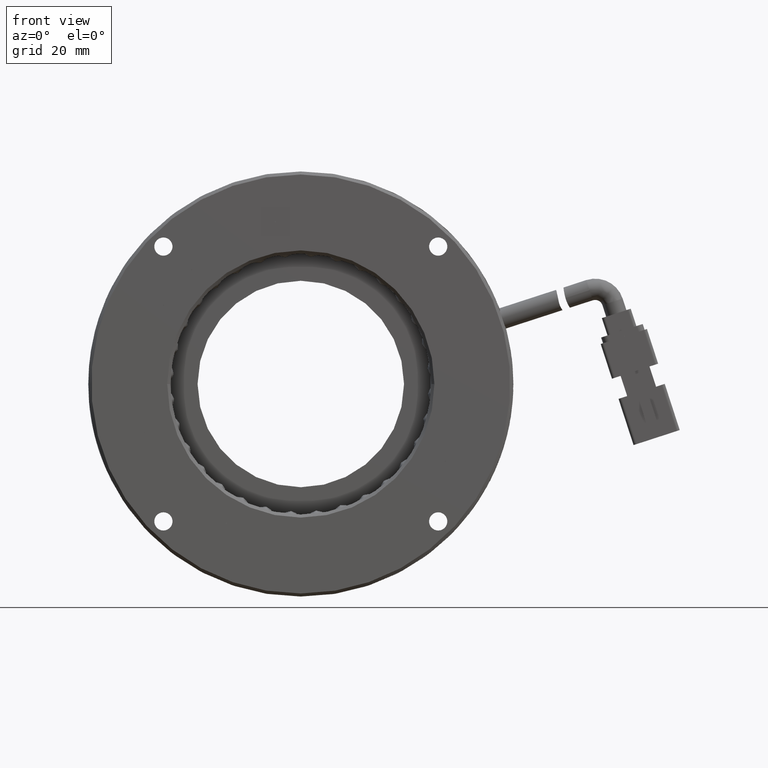
[diagram: clean part render]
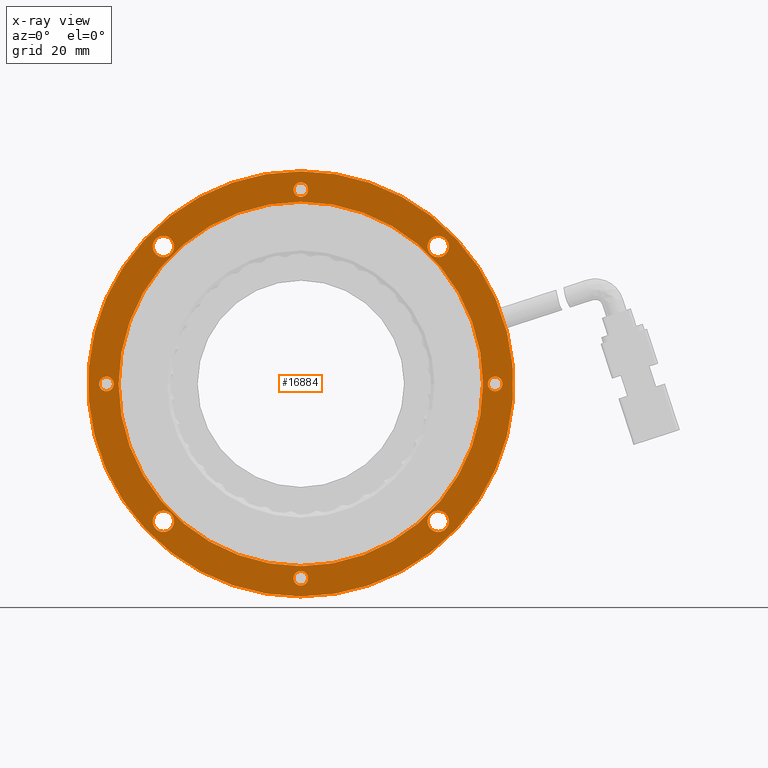
[diagram: x-ray — body ghosted, one internal face saturated and labeled with its STEP entity id]
A machine part, front view, then the same camera in x-ray: the body is ghosted and one INTERNAL B-rep face — a face not visible from any outside direction — is saturated and labeled: STEP entity #16884.
In plain terms, the highlighted planar face has unit normal (0, 1, 0).
Its self-contained STEP definition (entity closure, byte-faithful):
#415 = CARTESIAN_POINT ( 'NONE',  ( -37.70929214490434600, 11.26020291540426400, -1.200000000000019700 ) ) ;
#514 = CARTESIAN_POINT ( 'NONE',  ( -5.709292144904342300, 11.26020291540426400, -2.081668171172168500E-014 ) ) ;
#583 = AXIS2_PLACEMENT_3D ( 'NONE', #20029, #1546, #23216 ) ;
#794 = VERTEX_POINT ( 'NONE', #34914 ) ;
#1131 = CARTESIAN_POINT ( 'NONE',  ( -5.709292144904676300, 11.26020291540426400, 33.19999999999998200 ) ) ;
#1140 = AXIS2_PLACEMENT_3D ( 'NONE', #23021, #4474, #26160 ) ;
#1170 = AXIS2_PLACEMENT_3D ( 'NONE', #1481, #23152, #4618 ) ;
#1225 = AXIS2_PLACEMENT_3D ( 'NONE', #11918, #33789, #15044 ) ;
#1481 = CARTESIAN_POINT ( 'NONE',  ( -28.33670914287374700, 11.26020291540426400, -22.62741699796966100 ) ) ;
#1517 = DIRECTION ( 'NONE',  ( 0.0000000000000000000, 1.000000000000000000, 0.0000000000000000000 ) ) ;
#1546 = DIRECTION ( 'NONE',  ( 0.0000000000000000000, -1.000000000000000000, 0.0000000000000000000 ) ) ;
#1566 = EDGE_CURVE ( 'NONE', #21693, #3538, #11659, .T. ) ;
#1718 = AXIS2_PLACEMENT_3D ( 'NONE', #24076, #5513, #27234 ) ;
#1820 = EDGE_CURVE ( 'NONE', #12253, #8731, #12600, .T. ) ;
#2083 = EDGE_CURVE ( 'NONE', #34594, #6082, #17949, .T. ) ;
#2548 = ORIENTED_EDGE ( 'NONE', *, *, #11512, .T. ) ;
#2855 = ORIENTED_EDGE ( 'NONE', *, *, #32781, .T. ) ;
#2874 = DIRECTION ( 'NONE',  ( 0.0000000000000000000, 0.0000000000000000000, 1.000000000000000000 ) ) ;
#2922 = DIRECTION ( 'NONE',  ( 0.0000000000000000000, -1.000000000000000000, 0.0000000000000000000 ) ) ;
#3008 = CARTESIAN_POINT ( 'NONE',  ( -5.709292144904676300, 11.26020291540426400, 31.99999999999997900 ) ) ;
#3538 = VERTEX_POINT ( 'NONE', #18701 ) ;
#3633 = DIRECTION ( 'NONE',  ( 0.0000000000000000000, 0.0000000000000000000, -1.000000000000000000 ) ) ;
#4024 = AXIS2_PLACEMENT_3D ( 'NONE', #6215, #27947, #9305 ) ;
#4474 = DIRECTION ( 'NONE',  ( 0.0000000000000000000, -1.000000000000000000, 0.0000000000000000000 ) ) ;
#4618 = DIRECTION ( 'NONE',  ( 0.0000000000000000000, 0.0000000000000000000, 1.000000000000000000 ) ) ;
#4658 = EDGE_LOOP ( 'NONE', ( #16891, #11779 ) ) ;
#4754 = FACE_BOUND ( 'NONE', #33354, .T. ) ;
#4873 = CARTESIAN_POINT ( 'NONE',  ( 16.91812485306521900, 11.26020291540426400, 22.62741699796945800 ) ) ;
#5054 = VERTEX_POINT ( 'NONE', #19229 ) ;
#5105 = CARTESIAN_POINT ( 'NONE',  ( -37.70929214490434600, 11.26020291540426400, -1.986335369231264700E-014 ) ) ;
#5205 = EDGE_CURVE ( 'NONE', #24015, #12031, #19888, .T. ) ;
#5276 = CARTESIAN_POINT ( 'NONE',  ( 16.91812485306521900, 11.26020291540426400, 22.62741699796945800 ) ) ;
#5408 = CARTESIAN_POINT ( 'NONE',  ( -5.709292144904231300, 11.26020291540426400, -33.20000000000002400 ) ) ;
#5513 = DIRECTION ( 'NONE',  ( 0.0000000000000000000, -1.000000000000000000, 0.0000000000000000000 ) ) ;
#5524 = DIRECTION ( 'NONE',  ( 0.0000000000000000000, 1.000000000000000000, 0.0000000000000000000 ) ) ;
#5711 = FACE_BOUND ( 'NONE', #13757, .T. ) ;
#5867 = ORIENTED_EDGE ( 'NONE', *, *, #21473, .T. ) ;
#6082 = VERTEX_POINT ( 'NONE', #27359 ) ;
#6215 = CARTESIAN_POINT ( 'NONE',  ( -5.709292144904342300, 11.26020291540426400, -2.081668171172168500E-014 ) ) ;
#6388 = CARTESIAN_POINT ( 'NONE',  ( 16.91812485306537200, 11.26020291540426400, -22.62741699796934800 ) ) ;
#7347 = CIRCLE ( 'NONE', #12467, 1.749999999999994700 ) ;
#7453 = EDGE_CURVE ( 'NONE', #27348, #28203, #34976, .T. ) ;
#7493 = AXIS2_PLACEMENT_3D ( 'NONE', #3008, #2922, #2874 ) ;
#7595 = CIRCLE ( 'NONE', #25868, 1.749999999999991100 ) ;
#7948 = CARTESIAN_POINT ( 'NONE',  ( -37.70929214490434600, 11.26020291540426400, -1.986335369231264700E-014 ) ) ;
#7965 = DIRECTION ( 'NONE',  ( 0.0000000000000000000, 0.0000000000000000000, 1.000000000000000000 ) ) ;
#8035 = CARTESIAN_POINT ( 'NONE',  ( 26.29070785509565800, 11.26020291540426400, -1.199999999999798100 ) ) ;
#8192 = DIRECTION ( 'NONE',  ( 0.0000000000000000000, 0.0000000000000000000, 1.000000000000000000 ) ) ;
#8318 = EDGE_CURVE ( 'NONE', #38157, #29943, #19141, .T. ) ;
#8380 = DIRECTION ( 'NONE',  ( 0.0000000000000000000, 0.0000000000000000000, 1.000000000000000000 ) ) ;
#8666 = AXIS2_PLACEMENT_3D ( 'NONE', #6388, #28108, #9477 ) ;
#8731 = VERTEX_POINT ( 'NONE', #1131 ) ;
#9056 = DIRECTION ( 'NONE',  ( 0.0000000000000000000, 0.0000000000000000000, 1.000000000000000000 ) ) ;
#9105 = DIRECTION ( 'NONE',  ( 0.0000000000000000000, -1.000000000000000000, 0.0000000000000000000 ) ) ;
#9305 = DIRECTION ( 'NONE',  ( 0.0000000000000000000, 0.0000000000000000000, -1.000000000000000000 ) ) ;
#9404 = CARTESIAN_POINT ( 'NONE',  ( 26.29070785509565800, 11.26020291540426400, 2.016849253798697700E-013 ) ) ;
#9477 = DIRECTION ( 'NONE',  ( 0.0000000000000000000, 0.0000000000000000000, 1.000000000000000000 ) ) ;
#9619 = CARTESIAN_POINT ( 'NONE',  ( -28.33670914287390000, 11.26020291540426400, 22.62741699796946200 ) ) ;
#9729 = EDGE_CURVE ( 'NONE', #12031, #24015, #14126, .T. ) ;
#11008 = DIRECTION ( 'NONE',  ( 0.0000000000000000000, 0.0000000000000000000, 1.000000000000000000 ) ) ;
#11044 = ORIENTED_EDGE ( 'NONE', *, *, #33968, .F. ) ;
#11149 = CIRCLE ( 'NONE', #1170, 1.749999999999991100 ) ;
#11307 = ORIENTED_EDGE ( 'NONE', *, *, #7453, .F. ) ;
#11512 = EDGE_CURVE ( 'NONE', #16278, #38299, #14379, .T. ) ;
#11659 = CIRCLE ( 'NONE', #34071, 1.199999999999999700 ) ;
#11708 = CARTESIAN_POINT ( 'NONE',  ( -5.709292144904342300, 11.26020291540426400, -2.081668171172168500E-014 ) ) ;
#11713 = AXIS2_PLACEMENT_3D ( 'NONE', #35555, #16836, #38678 ) ;
#11779 = ORIENTED_EDGE ( 'NONE', *, *, #22088, .T. ) ;
#11918 = CARTESIAN_POINT ( 'NONE',  ( -28.33670914287390000, 11.26020291540426400, 22.62741699796946200 ) ) ;
#12031 = VERTEX_POINT ( 'NONE', #31120 ) ;
#12253 = VERTEX_POINT ( 'NONE', #16429 ) ;
#12467 = AXIS2_PLACEMENT_3D ( 'NONE', #9619, #31457, #12688 ) ;
#12530 = DIRECTION ( 'NONE',  ( 0.0000000000000000000, 0.0000000000000000000, 1.000000000000000000 ) ) ;
#12600 = CIRCLE ( 'NONE', #7493, 1.199999999999999700 ) ;
#12688 = DIRECTION ( 'NONE',  ( 0.0000000000000000000, 0.0000000000000000000, 1.000000000000000000 ) ) ;
#12713 = DIRECTION ( 'NONE',  ( 0.0000000000000000000, -1.000000000000000000, 0.0000000000000000000 ) ) ;
#12739 = CARTESIAN_POINT ( 'NONE',  ( -5.709292144904231300, 11.26020291540426400, -32.00000000000002100 ) ) ;
#12778 = DIRECTION ( 'NONE',  ( 0.0000000000000000000, 0.0000000000000000000, 1.000000000000000000 ) ) ;
#12802 = EDGE_LOOP ( 'NONE', ( #32792, #11307 ) ) ;
#12906 = FACE_BOUND ( 'NONE', #38295, .T. ) ;
#12914 = DIRECTION ( 'NONE',  ( -0.0000000000000000000, 1.000000000000000000, -0.0000000000000000000 ) ) ;
#13038 = CARTESIAN_POINT ( 'NONE',  ( -28.33670914287374700, 11.26020291540426400, -22.62741699796966100 ) ) ;
#13394 = CIRCLE ( 'NONE', #37802, 1.749999999999991100 ) ;
#13468 = AXIS2_PLACEMENT_3D ( 'NONE', #11708, #33577, #14845 ) ;
#13668 = EDGE_CURVE ( 'NONE', #36672, #24211, #13394, .T. ) ;
#13757 = EDGE_LOOP ( 'NONE', ( #16650, #16662 ) ) ;
#13920 = EDGE_LOOP ( 'NONE', ( #21022, #25463 ) ) ;
#14126 = CIRCLE ( 'NONE', #583, 1.199999999999999700 ) ;
#14379 = CIRCLE ( 'NONE', #8666, 1.749999999999991100 ) ;
#14494 = EDGE_CURVE ( 'NONE', #28916, #5054, #21066, .T. ) ;
#14611 = AXIS2_PLACEMENT_3D ( 'NONE', #514, #22147, #3633 ) ;
#14667 = CARTESIAN_POINT ( 'NONE',  ( -5.709292144904342300, 11.26020291540426400, -35.00000000000002100 ) ) ;
#14736 = ORIENTED_EDGE ( 'NONE', *, *, #14494, .F. ) ;
#14845 = DIRECTION ( 'NONE',  ( 0.0000000000000000000, 0.0000000000000000000, -1.000000000000000000 ) ) ;
#15044 = DIRECTION ( 'NONE',  ( 0.0000000000000000000, 0.0000000000000000000, 1.000000000000000000 ) ) ;
#15147 = CIRCLE ( 'NONE', #11713, 1.749999999999991100 ) ;
#15761 = EDGE_LOOP ( 'NONE', ( #23351, #20774 ) ) ;
#16278 = VERTEX_POINT ( 'NONE', #35379 ) ;
#16429 = CARTESIAN_POINT ( 'NONE',  ( -5.709292144904676300, 11.26020291540426400, 30.79999999999997900 ) ) ;
#16650 = ORIENTED_EDGE ( 'NONE', *, *, #28747, .F. ) ;
#16662 = ORIENTED_EDGE ( 'NONE', *, *, #8318, .F. ) ;
#16836 = DIRECTION ( 'NONE',  ( -0.0000000000000000000, 1.000000000000000000, -0.0000000000000000000 ) ) ;
#16884 = ADVANCED_FACE ( 'NONE', ( #37790, #5711, #22164, #29538, #21162, #23149, #12906, #4754, #36827, #28558 ), #38597, .F. ) ;
#16891 = ORIENTED_EDGE ( 'NONE', *, *, #13668, .T. ) ;
#17763 = EDGE_CURVE ( 'NONE', #8731, #12253, #35618, .T. ) ;
#17949 = CIRCLE ( 'NONE', #33617, 1.749999999999991100 ) ;
#18060 = ORIENTED_EDGE ( 'NONE', *, *, #22933, .T. ) ;
#18105 = EDGE_LOOP ( 'NONE', ( #35573, #27761 ) ) ;
#18529 = CARTESIAN_POINT ( 'NONE',  ( 16.91812485306521900, 11.26020291540426400, 20.87741699796946500 ) ) ;
#18607 = AXIS2_PLACEMENT_3D ( 'NONE', #5105, #26798, #8192 ) ;
#18701 = CARTESIAN_POINT ( 'NONE',  ( -5.709292144904231300, 11.26020291540426400, -30.80000000000002200 ) ) ;
#19141 = CIRCLE ( 'NONE', #18607, 1.199999999999999700 ) ;
#19229 = CARTESIAN_POINT ( 'NONE',  ( -5.709292144904337900, 11.26020291540426400, 34.99999999999998600 ) ) ;
#19291 = CARTESIAN_POINT ( 'NONE',  ( -5.709292144904338800, 11.26020291540426400, 29.99999999999997900 ) ) ;
#19888 = CIRCLE ( 'NONE', #31496, 1.199999999999999700 ) ;
#19993 = CARTESIAN_POINT ( 'NONE',  ( -40.70929214490435300, 11.26020291540426400, -2.081668171172168500E-014 ) ) ;
#20029 = CARTESIAN_POINT ( 'NONE',  ( 26.29070785509565800, 11.26020291540426400, 2.016849253798697700E-013 ) ) ;
#20149 = CIRCLE ( 'NONE', #14611, 30.00000000000000000 ) ;
#20774 = ORIENTED_EDGE ( 'NONE', *, *, #1820, .F. ) ;
#21022 = ORIENTED_EDGE ( 'NONE', *, *, #25089, .F. ) ;
#21066 = CIRCLE ( 'NONE', #4024, 35.00000000000000000 ) ;
#21162 = FACE_BOUND ( 'NONE', #15761, .T. ) ;
#21332 = ORIENTED_EDGE ( 'NONE', *, *, #29111, .T. ) ;
#21416 = AXIS2_PLACEMENT_3D ( 'NONE', #24087, #5524, #27245 ) ;
#21473 = EDGE_CURVE ( 'NONE', #6082, #34594, #11149, .T. ) ;
#21693 = VERTEX_POINT ( 'NONE', #5408 ) ;
#22088 = EDGE_CURVE ( 'NONE', #24211, #36672, #7595, .T. ) ;
#22147 = DIRECTION ( 'NONE',  ( -0.0000000000000000000, -1.000000000000000000, -0.0000000000000000000 ) ) ;
#22164 = FACE_BOUND ( 'NONE', #13920, .T. ) ;
#22933 = EDGE_CURVE ( 'NONE', #27096, #794, #29935, .T. ) ;
#23021 = CARTESIAN_POINT ( 'NONE',  ( -5.709292144904231300, 11.26020291540426400, -32.00000000000002100 ) ) ;
#23149 = FACE_BOUND ( 'NONE', #4658, .T. ) ;
#23152 = DIRECTION ( 'NONE',  ( -0.0000000000000000000, 1.000000000000000000, -0.0000000000000000000 ) ) ;
#23183 = DIRECTION ( 'NONE',  ( 0.0000000000000000000, -0.0000000000000000000, 1.000000000000000000 ) ) ;
#23216 = DIRECTION ( 'NONE',  ( 0.0000000000000000000, 0.0000000000000000000, 1.000000000000000000 ) ) ;
#23351 = ORIENTED_EDGE ( 'NONE', *, *, #17763, .F. ) ;
#24015 = VERTEX_POINT ( 'NONE', #8035 ) ;
#24076 = CARTESIAN_POINT ( 'NONE',  ( -5.709292144904676300, 11.26020291540426400, 31.99999999999997900 ) ) ;
#24087 = CARTESIAN_POINT ( 'NONE',  ( -5.709292144904342300, 11.26020291540426400, -2.081668171172168500E-014 ) ) ;
#24211 = VERTEX_POINT ( 'NONE', #18529 ) ;
#25051 = AXIS2_PLACEMENT_3D ( 'NONE', #19993, #1517, #23183 ) ;
#25089 = EDGE_CURVE ( 'NONE', #3538, #21693, #29994, .T. ) ;
#25463 = ORIENTED_EDGE ( 'NONE', *, *, #1566, .F. ) ;
#25868 = AXIS2_PLACEMENT_3D ( 'NONE', #5276, #26996, #8380 ) ;
#26160 = DIRECTION ( 'NONE',  ( 0.0000000000000000000, 0.0000000000000000000, 1.000000000000000000 ) ) ;
#26530 = CARTESIAN_POINT ( 'NONE',  ( -28.33670914287374700, 11.26020291540426400, -24.37741699796965000 ) ) ;
#26576 = DIRECTION ( 'NONE',  ( -0.0000000000000000000, 1.000000000000000000, -0.0000000000000000000 ) ) ;
#26798 = DIRECTION ( 'NONE',  ( 0.0000000000000000000, -1.000000000000000000, 0.0000000000000000000 ) ) ;
#26996 = DIRECTION ( 'NONE',  ( -0.0000000000000000000, 1.000000000000000000, -0.0000000000000000000 ) ) ;
#27096 = VERTEX_POINT ( 'NONE', #27559 ) ;
#27234 = DIRECTION ( 'NONE',  ( 0.0000000000000000000, 0.0000000000000000000, 1.000000000000000000 ) ) ;
#27245 = DIRECTION ( 'NONE',  ( 0.0000000000000000000, 0.0000000000000000000, -1.000000000000000000 ) ) ;
#27348 = VERTEX_POINT ( 'NONE', #19291 ) ;
#27359 = CARTESIAN_POINT ( 'NONE',  ( -28.33670914287374700, 11.26020291540426400, -20.87741699796966800 ) ) ;
#27559 = CARTESIAN_POINT ( 'NONE',  ( -28.33670914287390000, 11.26020291540426400, 20.87741699796946500 ) ) ;
#27761 = ORIENTED_EDGE ( 'NONE', *, *, #5205, .F. ) ;
#27947 = DIRECTION ( 'NONE',  ( 0.0000000000000000000, 1.000000000000000000, 0.0000000000000000000 ) ) ;
#27975 = EDGE_LOOP ( 'NONE', ( #14736, #11044 ) ) ;
#28108 = DIRECTION ( 'NONE',  ( -0.0000000000000000000, 1.000000000000000000, -0.0000000000000000000 ) ) ;
#28203 = VERTEX_POINT ( 'NONE', #36379 ) ;
#28558 = FACE_BOUND ( 'NONE', #12802, .T. ) ;
#28747 = EDGE_CURVE ( 'NONE', #29943, #38157, #34592, .T. ) ;
#28806 = CARTESIAN_POINT ( 'NONE',  ( 16.91812485306521900, 11.26020291540426400, 24.37741699796944800 ) ) ;
#28916 = VERTEX_POINT ( 'NONE', #14667 ) ;
#29111 = EDGE_CURVE ( 'NONE', #794, #27096, #7347, .T. ) ;
#29538 = FACE_BOUND ( 'NONE', #18105, .T. ) ;
#29701 = DIRECTION ( 'NONE',  ( 0.0000000000000000000, -1.000000000000000000, 0.0000000000000000000 ) ) ;
#29935 = CIRCLE ( 'NONE', #1225, 1.749999999999994700 ) ;
#29943 = VERTEX_POINT ( 'NONE', #38949 ) ;
#29994 = CIRCLE ( 'NONE', #1140, 1.199999999999999700 ) ;
#30347 = EDGE_CURVE ( 'NONE', #28203, #27348, #20149, .T. ) ;
#30810 = AXIS2_PLACEMENT_3D ( 'NONE', #7948, #29701, #11008 ) ;
#31120 = CARTESIAN_POINT ( 'NONE',  ( 26.29070785509565800, 11.26020291540426400, 1.200000000000201400 ) ) ;
#31457 = DIRECTION ( 'NONE',  ( -0.0000000000000000000, 1.000000000000000000, -0.0000000000000000000 ) ) ;
#31496 = AXIS2_PLACEMENT_3D ( 'NONE', #9404, #9105, #9056 ) ;
#31545 = CIRCLE ( 'NONE', #21416, 35.00000000000000000 ) ;
#31623 = ORIENTED_EDGE ( 'NONE', *, *, #2083, .T. ) ;
#32781 = EDGE_CURVE ( 'NONE', #38299, #16278, #15147, .T. ) ;
#32792 = ORIENTED_EDGE ( 'NONE', *, *, #30347, .F. ) ;
#33354 = EDGE_LOOP ( 'NONE', ( #5867, #31623 ) ) ;
#33577 = DIRECTION ( 'NONE',  ( -0.0000000000000000000, -1.000000000000000000, -0.0000000000000000000 ) ) ;
#33617 = AXIS2_PLACEMENT_3D ( 'NONE', #13038, #12914, #12778 ) ;
#33789 = DIRECTION ( 'NONE',  ( -0.0000000000000000000, 1.000000000000000000, -0.0000000000000000000 ) ) ;
#33968 = EDGE_CURVE ( 'NONE', #5054, #28916, #31545, .T. ) ;
#34071 = AXIS2_PLACEMENT_3D ( 'NONE', #12739, #12713, #12530 ) ;
#34592 = CIRCLE ( 'NONE', #30810, 1.199999999999999700 ) ;
#34594 = VERTEX_POINT ( 'NONE', #26530 ) ;
#34914 = CARTESIAN_POINT ( 'NONE',  ( -28.33670914287390000, 11.26020291540426400, 24.37741699796945500 ) ) ;
#34976 = CIRCLE ( 'NONE', #13468, 30.00000000000000000 ) ;
#35157 = CARTESIAN_POINT ( 'NONE',  ( 16.91812485306537200, 11.26020291540426400, -20.87741699796935500 ) ) ;
#35379 = CARTESIAN_POINT ( 'NONE',  ( 16.91812485306537200, 11.26020291540426400, -24.37741699796933800 ) ) ;
#35555 = CARTESIAN_POINT ( 'NONE',  ( 16.91812485306537200, 11.26020291540426400, -22.62741699796934800 ) ) ;
#35573 = ORIENTED_EDGE ( 'NONE', *, *, #9729, .F. ) ;
#35618 = CIRCLE ( 'NONE', #1718, 1.199999999999999700 ) ;
#35838 = EDGE_LOOP ( 'NONE', ( #2855, #2548 ) ) ;
#36379 = CARTESIAN_POINT ( 'NONE',  ( -5.709292144904342300, 11.26020291540426400, -30.00000000000002100 ) ) ;
#36672 = VERTEX_POINT ( 'NONE', #28806 ) ;
#36827 = FACE_BOUND ( 'NONE', #35838, .T. ) ;
#37790 = FACE_OUTER_BOUND ( 'NONE', #27975, .T. ) ;
#37802 = AXIS2_PLACEMENT_3D ( 'NONE', #4873, #26576, #7965 ) ;
#38157 = VERTEX_POINT ( 'NONE', #415 ) ;
#38295 = EDGE_LOOP ( 'NONE', ( #21332, #18060 ) ) ;
#38299 = VERTEX_POINT ( 'NONE', #35157 ) ;
#38597 = PLANE ( 'NONE',  #25051 ) ;
#38678 = DIRECTION ( 'NONE',  ( 0.0000000000000000000, 0.0000000000000000000, 1.000000000000000000 ) ) ;
#38949 = CARTESIAN_POINT ( 'NONE',  ( -37.70929214490434600, 11.26020291540426400, 1.199999999999979700 ) ) ;